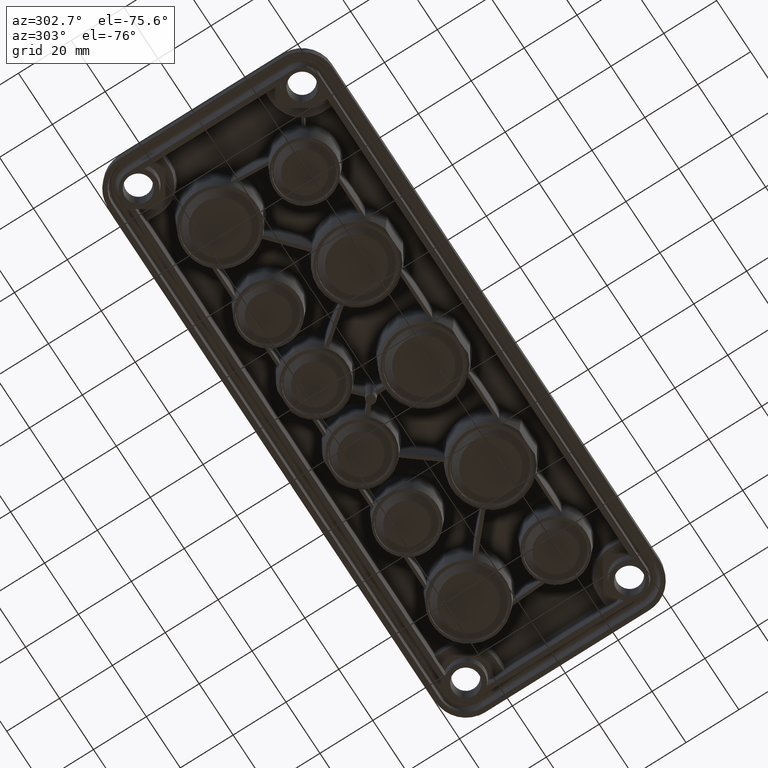
[diagram: clean part render]
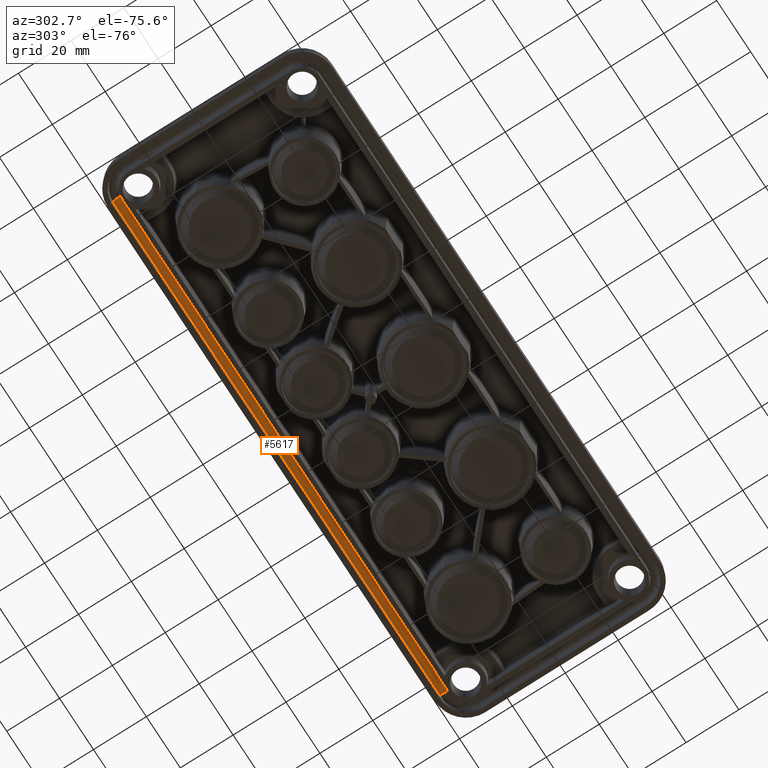
[diagram: same view with one face highlighted and labeled with its STEP entity id]
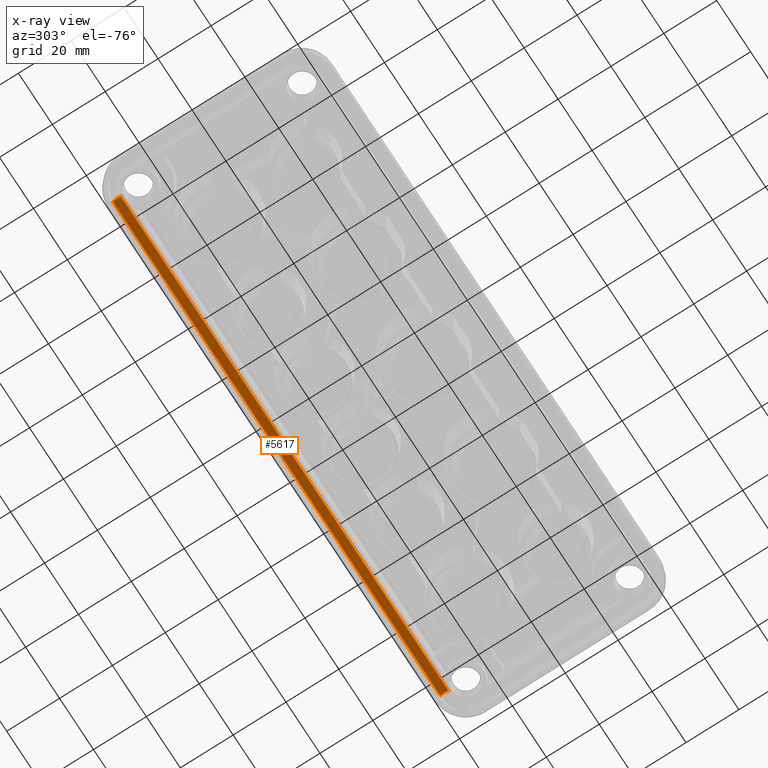
[diagram: x-ray of the same camera — body ghosted, the highlighted face saturated]
A machine part, auxiliary view. The second image highlights one B-rep face of the part: STEP entity #5617.
The next image is the same camera in x-ray: the body ghosted, the highlighted face saturated — about 0% of this face is hidden behind the body in this view.
In plain terms, the highlighted cylindrical surface (edge-blend (fillet) strip) has radius 1.6 mm, axis along (-1, -0, 0).
Its self-contained STEP definition (entity closure, byte-faithful):
#2058 = ORIENTED_EDGE ( 'NONE', *, *, #5927, .F. ) ;
#2653 = DIRECTION ( 'NONE',  ( 0.0000000000000000000, -1.000000000000000000, 0.0000000000000000000 ) ) ;
#2678 = CARTESIAN_POINT ( 'NONE',  ( 308.1606648836394700, 178.0816781037106900, 2.900000000000000800 ) ) ;
#4109 = EDGE_CURVE ( 'NONE', #13134, #8980, #5738, .T. ) ;
#4424 = EDGE_CURVE ( 'NONE', #17818, #8980, #15628, .T. ) ;
#4625 = VECTOR ( 'NONE', #7500, 1000.000000000000000 ) ;
#5291 = AXIS2_PLACEMENT_3D ( 'NONE', #2678, #6764, #9518 ) ;
#5617 = ADVANCED_FACE ( 'NONE', ( #6563 ), #13445, .F. ) ;
#5738 = CIRCLE ( 'NONE', #13354, 1.599999999999990300 ) ;
#5859 = CARTESIAN_POINT ( 'NONE',  ( 308.1606648836394700, 179.6794853593179900, 2.983737529988716100 ) ) ;
#5927 = EDGE_CURVE ( 'NONE', #17818, #8596, #9130, .T. ) ;
#6372 = EDGE_LOOP ( 'NONE', ( #12704, #2058, #17618, #8505 ) ) ;
#6563 = FACE_OUTER_BOUND ( 'NONE', #6372, .T. ) ;
#6764 = DIRECTION ( 'NONE',  ( -1.000000000000000000, -1.224606353822377300E-016, 0.0000000000000000000 ) ) ;
#7500 = DIRECTION ( 'NONE',  ( -1.000000000000000000, -1.224606353822377300E-016, 0.0000000000000000000 ) ) ;
#8505 = ORIENTED_EDGE ( 'NONE', *, *, #4109, .F. ) ;
#8596 = VERTEX_POINT ( 'NONE', #5859 ) ;
#8980 = VERTEX_POINT ( 'NONE', #17161 ) ;
#9130 = CIRCLE ( 'NONE', #9208, 1.599999999999990300 ) ;
#9208 = AXIS2_PLACEMENT_3D ( 'NONE', #14755, #9248, #2653 ) ;
#9248 = DIRECTION ( 'NONE',  ( -1.000000000000000000, -1.224606353822377300E-016, 0.0000000000000000000 ) ) ;
#9370 = DIRECTION ( 'NONE',  ( -1.000000000000000000, -1.221252092952919200E-016, 6.400311013642876900E-018 ) ) ;
#9451 = DIRECTION ( 'NONE',  ( 0.0000000000000000000, -1.000000000000000000, -8.131516293641332600E-016 ) ) ;
#9518 = DIRECTION ( 'NONE',  ( 0.0000000000000000000, -1.000000000000000000, 0.0000000000000000000 ) ) ;
#10846 = DIRECTION ( 'NONE',  ( 1.000000000000000000, 1.224606353822377300E-016, -0.0000000000000000000 ) ) ;
#11675 = CARTESIAN_POINT ( 'NONE',  ( 308.1606648836394700, 176.4838708481025000, 2.983737529984905800 ) ) ;
#11953 = CARTESIAN_POINT ( 'NONE',  ( 308.1606648836394700, 176.4838708481033800, 2.983737529988709900 ) ) ;
#12704 = ORIENTED_EDGE ( 'NONE', *, *, #15179, .F. ) ;
#12793 = LINE ( 'NONE', #15752, #4625 ) ;
#13134 = VERTEX_POINT ( 'NONE', #14007 ) ;
#13354 = AXIS2_PLACEMENT_3D ( 'NONE', #17676, #10846, #9451 ) ;
#13445 = CYLINDRICAL_SURFACE ( 'NONE', #5291, 1.599999999999990300 ) ;
#14007 = CARTESIAN_POINT ( 'NONE',  ( 115.1606648836394700, 179.6794853593179900, 2.983737529988715200 ) ) ;
#14755 = CARTESIAN_POINT ( 'NONE',  ( 308.1606648836394700, 178.0816781037106900, 2.900000000000000800 ) ) ;
#15179 = EDGE_CURVE ( 'NONE', #8596, #13134, #12793, .T. ) ;
#15628 = LINE ( 'NONE', #11953, #15824 ) ;
#15752 = CARTESIAN_POINT ( 'NONE',  ( 308.1606648836394700, 179.6794853593180200, 2.983737529988715200 ) ) ;
#15824 = VECTOR ( 'NONE', #9370, 1000.000000000000000 ) ;
#17161 = CARTESIAN_POINT ( 'NONE',  ( 115.1606648836393600, 176.4838708481021300, 2.983737529984906700 ) ) ;
#17618 = ORIENTED_EDGE ( 'NONE', *, *, #4424, .T. ) ;
#17676 = CARTESIAN_POINT ( 'NONE',  ( 115.1606648836394700, 178.0816781037106600, 2.900000000000000800 ) ) ;
#17818 = VERTEX_POINT ( 'NONE', #11675 ) ;